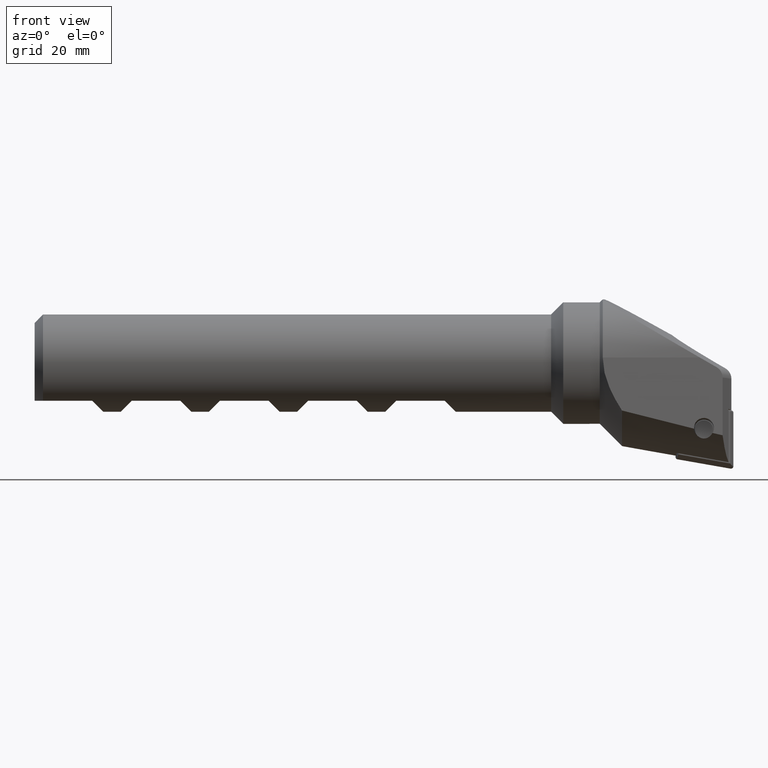
[diagram: clean part render]
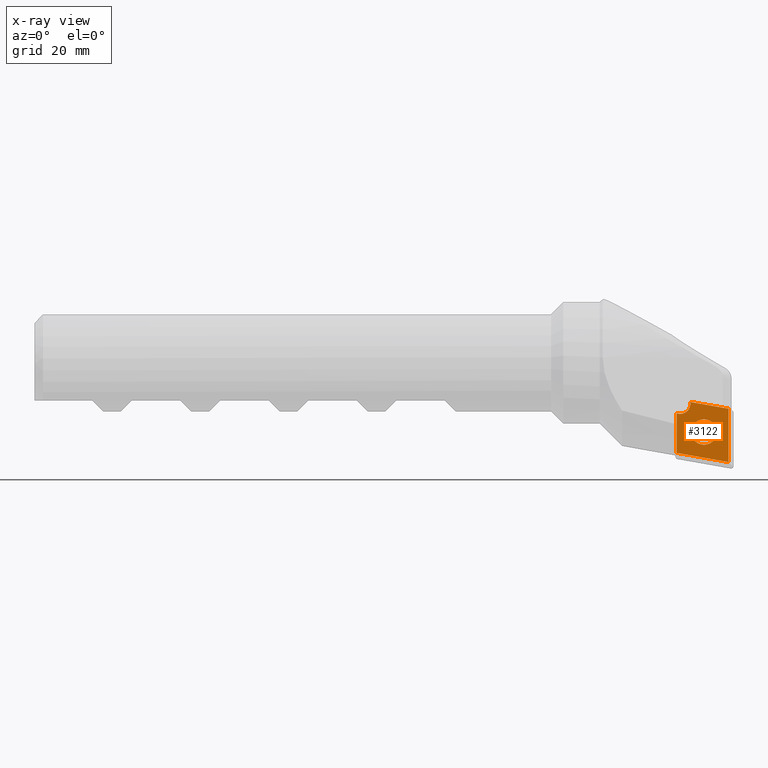
[diagram: x-ray — body ghosted, one internal face saturated and labeled with its STEP entity id]
A machine part, front view, then the same camera in x-ray: the body is ghosted and one INTERNAL B-rep face — a face not visible from any outside direction — is saturated and labeled: STEP entity #3122.
In plain terms, the highlighted planar face has unit normal (0, 0.9962, -0.0872).
Its self-contained STEP definition (entity closure, byte-faithful):
#166 = CARTESIAN_POINT ( 'NONE',  ( 105.6554933045272700, -3.758308412310280100, -14.78202013730512100 ) ) ;
#202 = FACE_OUTER_BOUND ( 'NONE', #930, .T. ) ;
#389 = DIRECTION ( 'NONE',  ( 0.0000000000000000000, 0.08715574274765841600, 0.9961946980917454300 ) ) ;
#399 = CARTESIAN_POINT ( 'NONE',  ( 114.2125452932154800, -3.891391475091116300, -16.30316650550175300 ) ) ;
#408 = DIRECTION ( 'NONE',  ( 8.738754732503797200E-018, -0.08715574274765831900, -0.9961946980917455500 ) ) ;
#418 = VERTEX_POINT ( 'NONE', #2794 ) ;
#420 = EDGE_CURVE ( 'NONE', #609, #3568, #1698, .T. ) ;
#462 = LINE ( 'NONE', #2408, #588 ) ;
#588 = VECTOR ( 'NONE', #3282, 1000.000000000000000 ) ;
#609 = VERTEX_POINT ( 'NONE', #2307 ) ;
#621 = CARTESIAN_POINT ( 'NONE',  ( 114.2125452932154800, -3.891391475091116300, -16.30316650550175300 ) ) ;
#690 = ORIENTED_EDGE ( 'NONE', *, *, #1100, .T. ) ;
#694 = CARTESIAN_POINT ( 'NONE',  ( 106.2554933045272800, -3.053302018196038400, -6.723760178798184700 ) ) ;
#705 = DIRECTION ( 'NONE',  ( 1.056890629061876400E-017, 0.9961946980917456600, -0.08715574274765830500 ) ) ;
#867 = VECTOR ( 'NONE', #408, 1000.000000000000100 ) ;
#880 = ORIENTED_EDGE ( 'NONE', *, *, #1391, .F. ) ;
#930 = EDGE_LOOP ( 'NONE', ( #1795, #2347, #947, #3246, #690 ) ) ;
#947 = ORIENTED_EDGE ( 'NONE', *, *, #420, .T. ) ;
#1014 = AXIS2_PLACEMENT_3D ( 'NONE', #3269, #3877, #1741 ) ;
#1033 = B_SPLINE_CURVE_WITH_KNOTS ( 'NONE', 3,
 ( #621, #1232, #2304, #166 ),
 .UNSPECIFIED., .F., .F.,
 ( 4, 4 ),
 ( 0.0003120026529475233300, 0.009004225389899322300 ),
 .UNSPECIFIED. ) ;
#1076 = CIRCLE ( 'NONE', #2952, 2.100000000000003600 ) ;
#1100 = EDGE_CURVE ( 'NONE', #3199, #3595, #462, .T. ) ;
#1102 = VERTEX_POINT ( 'NONE', #3074 ) ;
#1232 = CARTESIAN_POINT ( 'NONE',  ( 111.3600990630951100, -3.847077156469178600, -15.79665152589177300 ) ) ;
#1391 = EDGE_CURVE ( 'NONE', #1102, #1102, #1076, .T. ) ;
#1548 = DIRECTION ( 'NONE',  ( 0.0000000000000000000, 0.08715574274765826300, 0.9961946980917456600 ) ) ;
#1584 = CARTESIAN_POINT ( 'NONE',  ( 114.2125452932154800, -4.042048694171888300, -18.02518639938354600 ) ) ;
#1698 = LINE ( 'NONE', #1584, #867 ) ;
#1741 = DIRECTION ( 'NONE',  ( 0.0000000000000000000, 0.08715574274765830500, 0.9961946980917455500 ) ) ;
#1773 = FACE_BOUND ( 'NONE', #2848, .T. ) ;
#1776 = PLANE ( 'NONE',  #1014 ) ;
#1795 = ORIENTED_EDGE ( 'NONE', *, *, #3875, .F. ) ;
#1809 = CARTESIAN_POINT ( 'NONE',  ( 110.1554933045272800, -3.458387879381517500, -11.35391275925737300 ) ) ;
#1835 = CARTESIAN_POINT ( 'NONE',  ( 105.6554933045272700, -3.758308412310280100, -14.78202013730512100 ) ) ;
#2136 = DIRECTION ( 'NONE',  ( -0.0000000000000000000, 0.9961946980917455500, -0.08715574274765831900 ) ) ;
#2145 = VECTOR ( 'NONE', #2960, 1000.000000000000200 ) ;
#2181 = CARTESIAN_POINT ( 'NONE',  ( 105.6554933045272700, -3.187264108931922900, -8.254953882496597100 ) ) ;
#2304 = CARTESIAN_POINT ( 'NONE',  ( 108.5077385971255000, -3.802720867425279500, -15.28965682216361300 ) ) ;
#2307 = CARTESIAN_POINT ( 'NONE',  ( 114.2125452932154800, -3.122485112489758600, -7.514526565042272600 ) ) ;
#2347 = ORIENTED_EDGE ( 'NONE', *, *, #3745, .T. ) ;
#2408 = CARTESIAN_POINT ( 'NONE',  ( 105.6554933045272700, -3.906472654437258100, -16.47554517421547600 ) ) ;
#2655 = CARTESIAN_POINT ( 'NONE',  ( 105.6554933045272700, -2.990981116475195800, -6.011429012573699100 ) ) ;
#2700 = CIRCLE ( 'NONE', #3239, 1.649999999999999000 ) ;
#2794 = CARTESIAN_POINT ( 'NONE',  ( 107.8733736949851300, -3.025065300422319100, -6.401013017786263000 ) ) ;
#2848 = EDGE_LOOP ( 'NONE', ( #880 ) ) ;
#2898 = EDGE_CURVE ( 'NONE', #3568, #3199, #1033, .T. ) ;
#2944 = LINE ( 'NONE', #2655, #2145 ) ;
#2952 = AXIS2_PLACEMENT_3D ( 'NONE', #1809, #2136, #1548 ) ;
#2960 = DIRECTION ( 'NONE',  ( 0.9848077530122070200, -0.01513443590133915100, -0.1729873939250951000 ) ) ;
#3074 = CARTESIAN_POINT ( 'NONE',  ( 110.1554933045272800, -3.275360819611434800, -9.261903893264703300 ) ) ;
#3122 = ADVANCED_FACE ( 'NONE', ( #202, #1773 ), #1776, .T. ) ;
#3199 = VERTEX_POINT ( 'NONE', #1835 ) ;
#3239 = AXIS2_PLACEMENT_3D ( 'NONE', #694, #705, #389 ) ;
#3246 = ORIENTED_EDGE ( 'NONE', *, *, #2898, .T. ) ;
#3269 = CARTESIAN_POINT ( 'NONE',  ( 115.0000000000000000, -3.134586644741699700, -7.652847711625507400 ) ) ;
#3282 = DIRECTION ( 'NONE',  ( 0.0000000000000000000, 0.08715574274765833200, 0.9961946980917455500 ) ) ;
#3568 = VERTEX_POINT ( 'NONE', #399 ) ;
#3595 = VERTEX_POINT ( 'NONE', #2181 ) ;
#3745 = EDGE_CURVE ( 'NONE', #418, #609, #2944, .T. ) ;
#3875 = EDGE_CURVE ( 'NONE', #418, #3595, #2700, .T. ) ;
#3877 = DIRECTION ( 'NONE',  ( 1.056890629061876200E-017, 0.9961946980917455500, -0.08715574274765830500 ) ) ;